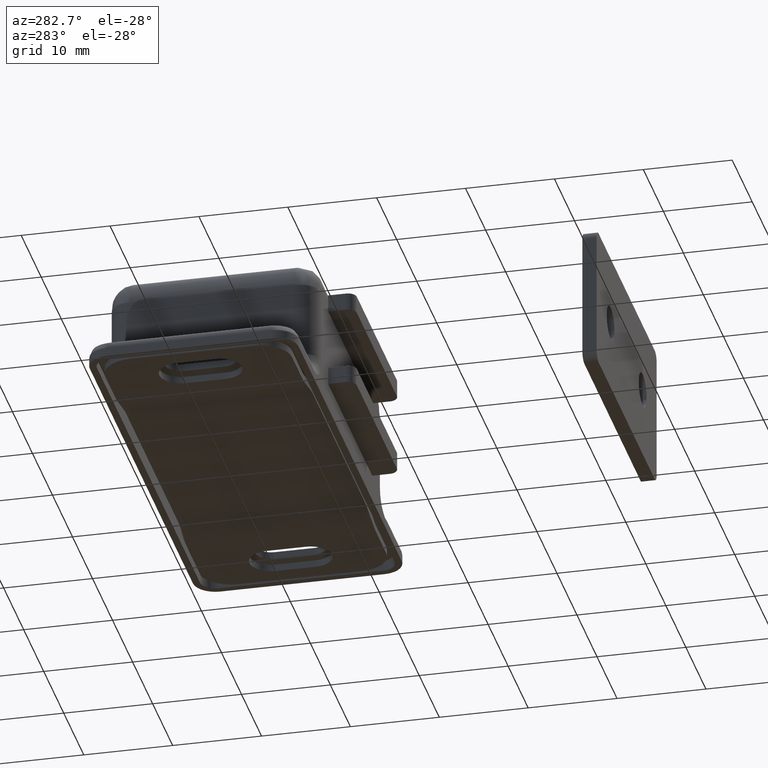
[diagram: clean part render]
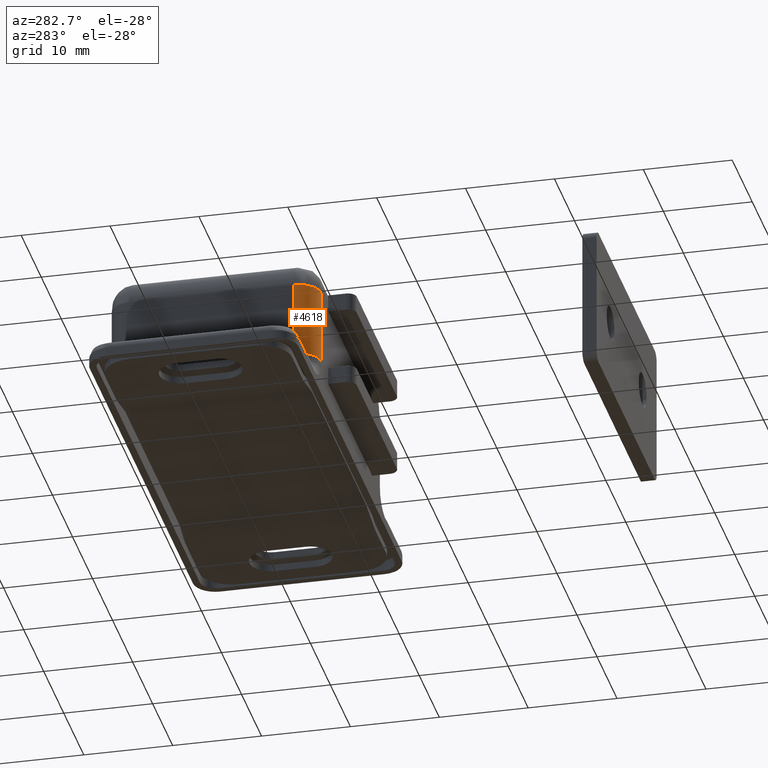
[diagram: same view with one face highlighted and labeled with its STEP entity id]
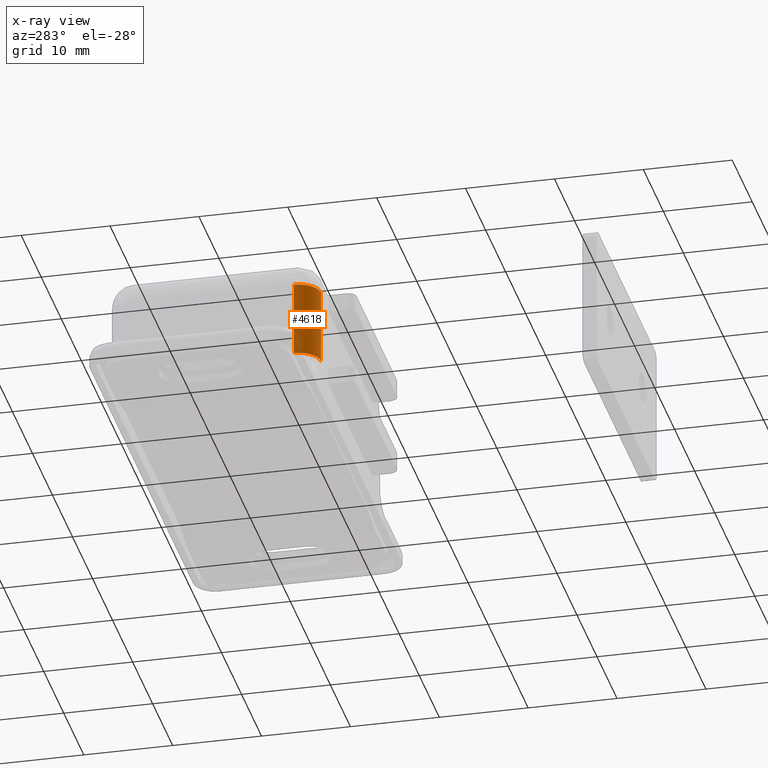
[diagram: x-ray of the same camera — body ghosted, the highlighted face saturated]
A machine part, auxiliary view. The second image highlights one B-rep face of the part: STEP entity #4618.
The next image is the same camera in x-ray: the body ghosted, the highlighted face saturated — about 5% of this face is hidden behind the body in this view.
In plain terms, the highlighted face is a freeform B-spline surface patch.
Its self-contained STEP definition (entity closure, byte-faithful):
#4465=CARTESIAN_POINT('',(-14.500003999999979,-23.500000000000000,4.0));
#4466=VERTEX_POINT('',#4465);
#4467=CARTESIAN_POINT('',(-17.000004000000001,-21.0,4.0));
#4468=VERTEX_POINT('',#4467);
#4469=CARTESIAN_POINT('',(-14.500003999999979,-23.500000000000000,4.000000000000004));
#4470=CARTESIAN_POINT('',(-14.827253234748920,-23.499999999999989,4.000000000000004));
#4471=CARTESIAN_POINT('',(-15.154373710898181,-23.434931691670801,4.000000000000004));
#4472=CARTESIAN_POINT('',(-15.759051450927229,-23.184465970885640,4.000000000000004));
#4473=CARTESIAN_POINT('',(-16.036370799937259,-22.999167105995451,4.000000000000003));
#4474=CARTESIAN_POINT('',(-16.499171105995419,-22.536366799937291,4.000000000000004));
#4475=CARTESIAN_POINT('',(-16.684469970885630,-22.259047450927259,4.000000000000003));
#4476=CARTESIAN_POINT('',(-16.934935691670770,-21.654369710898209,4.000000000000004));
#4477=CARTESIAN_POINT('',(-17.000003999999979,-21.327249234748940,4.000000000000004));
#4478=CARTESIAN_POINT('',(-17.000003999999979,-21.000000000000011,4.000000000000004));
#4479=B_SPLINE_CURVE_WITH_KNOTS('',3,(#4469,#4470,#4471,#4472,#4473,#4474,#4475,#4476,#4477,#4478),.UNSPECIFIED.,.F.,.U.,(4,2,2,2,4),(0.0,0.250000000000000,0.500000000000000,0.750000000000000,1.0),.UNSPECIFIED.);
#4480=EDGE_CURVE('',#4466,#4468,#4479,.T.);
#4574=CARTESIAN_POINT('',(-14.434561629230309,-23.499143312438889,3.787500000000004));
#4575=CARTESIAN_POINT('',(-14.434561629230309,-23.499143312438889,12.717812499999839));
#4576=CARTESIAN_POINT('',(-17.114564719357222,-23.569321663162114,3.787500000000003));
#4577=CARTESIAN_POINT('',(-17.114564719357222,-23.569321663162114,12.717812499999839));
#4578=CARTESIAN_POINT('',(-16.997624553954619,-20.890951531586641,3.787500000000004));
#4579=CARTESIAN_POINT('',(-16.997624553954619,-20.890951531586641,12.717812499999839));
#4587=(BOUNDED_SURFACE()B_SPLINE_SURFACE(1,2,((#4574,#4576,#4578),(#4575,#4577,#4579)),.UNSPECIFIED.,.F.,.F.,.U.)B_SPLINE_SURFACE_WITH_KNOTS((2,2),(3,3),(0.0,8.930312499999834),(0.0,4.348123749609334),.UNSPECIFIED.)GEOMETRIC_REPRESENTATION_ITEM()RATIONAL_B_SPLINE_SURFACE(((1.0,0.681998360062498,1.0),(1.0,0.681998360062498,1.0)))REPRESENTATION_ITEM('')SURFACE());
#4588=CARTESIAN_POINT('',(-14.500004000000001,-23.500000000000000,12.499999999999840));
#4589=VERTEX_POINT('',#4588);
#4590=CARTESIAN_POINT('',(-17.000004000000001,-21.0,12.499999999999840));
#4591=VERTEX_POINT('',#4590);
#4592=CARTESIAN_POINT('',(-14.500004000000001,-23.500000000000000,12.499999999999840));
#4593=CARTESIAN_POINT('',(-17.000003999999993,-23.500000000000004,12.499999999999842));
#4594=CARTESIAN_POINT('',(-17.000004000000001,-21.0,12.499999999999840));
#4602=(BOUNDED_CURVE()B_SPLINE_CURVE(2,(#4592,#4593,#4594),.UNSPECIFIED.,.F.,.U.)CURVE()GEOMETRIC_REPRESENTATION_ITEM()QUASI_UNIFORM_CURVE()RATIONAL_B_SPLINE_CURVE((1.0,0.707106781186548,1.0))REPRESENTATION_ITEM(''));
#4603=EDGE_CURVE('',#4589,#4591,#4602,.T.);
#4604=ORIENTED_EDGE('',*,*,#4603,.T.);
#4605=CARTESIAN_POINT('',(-17.000004000000001,-21.0,4.0));
#4606=CARTESIAN_POINT('',(-17.000004000000001,-21.0,12.499999999999840));
#4607=QUASI_UNIFORM_CURVE('',1,(#4605,#4606),.UNSPECIFIED.,.F.,.U.);
#4608=EDGE_CURVE('',#4468,#4591,#4607,.T.);
#4609=ORIENTED_EDGE('',*,*,#4608,.F.);
#4610=ORIENTED_EDGE('',*,*,#4480,.F.);
#4611=CARTESIAN_POINT('',(-14.500004000000001,-23.500000000000000,12.499999999999840));
#4612=CARTESIAN_POINT('',(-14.500003999999979,-23.500000000000000,4.0));
#4613=QUASI_UNIFORM_CURVE('',1,(#4611,#4612),.UNSPECIFIED.,.F.,.U.);
#4614=EDGE_CURVE('',#4589,#4466,#4613,.T.);
#4615=ORIENTED_EDGE('',*,*,#4614,.F.);
#4616=EDGE_LOOP('',(#4604,#4609,#4610,#4615));
#4617=FACE_OUTER_BOUND('',#4616,.T.);
#4618=ADVANCED_FACE('',(#4617),#4587,.T.);